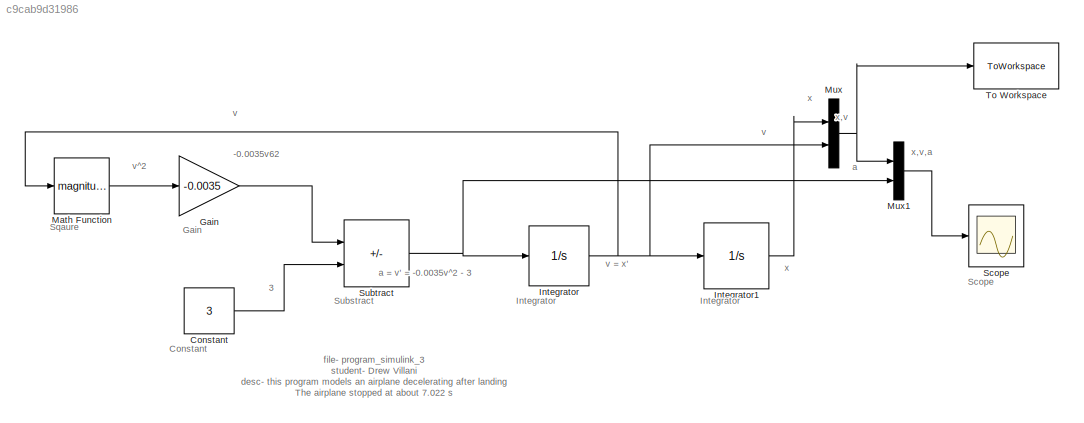
MODEL slx_c9cab9d31986
KIND model
CONFIG AbsTol = auto
CONFIG EnableMultiTasking = off
CONFIG FixedStep = auto
CONFIG MaxStep = auto
CONFIG MinStep = auto
CONFIG RelTol = 1e-3
CONFIG SampleTimeConstraint = Unconstrained
CONFIG SolverName = VariableStepAuto
CONFIG StartTime = 0.0
CONFIG StopTime = 13
BLOCK [Constant] Constant
  Value = 3
BLOCK [Gain] Gain
  Gain = -0.0035
BLOCK [Integrator] Integrator
BLOCK [Integrator] Integrator1
  InitialCondition = 83.33
BLOCK [Math] Math Function
  Operator = magnitude^2
BLOCK [Mux] Mux
  DisplayOption = bar
  Inputs = 2
BLOCK [Mux] Mux1
  DisplayOption = bar
  Inputs = 2
BLOCK [Scope] Scope
  Floating = off
  NumInputPorts = 1
  ScopeSpecificationString = Simulink.scopes.TimeScopeBlockCfg('CurrentConfiguration', extmgr.ConfigurationSet(extmgr.Configuration('Core','General UI',true),extmgr.Configuration('Core','Source UI',true),extmgr.Configuration('Sources','WiredSimulink',true),extmgr.Configuration('Visuals','Time Domain',true,'SerializedDisplays',{struct('MinYLimReal','-380.19958','MaxYLimReal','134.83329','YLabelReal','','MinYLimMag',' 0.00000',...<+1491ch>
BLOCK [Sum] Subtract
  IconShape = rectangular
  Inputs = +-
BLOCK [ToWorkspace] To Workspace
  MaxDataPoints = inf
  SampleTime = -1
  SaveFormat = Timeseries
  VariableName = simout
ANNOTATION (root): -0.0035v62
ANNOTATION (root): 3
ANNOTATION (root): file- program_simulink_3 student- Drew Villani desc- this program models an airplane decelerating after landing The airplane stopped at about 7.022 s
ANNOTATION (root): Constant
ANNOTATION (root): Gain
ANNOTATION (root): Integrator
ANNOTATION (root): Scope
ANNOTATION (root): Sqaure
ANNOTATION (root): Substract
ANNOTATION (root): a
ANNOTATION (root): a = v' = -0.0035v^2 - 3
ANNOTATION (root): v
ANNOTATION (root): v = x'
ANNOTATION (root): v^2
ANNOTATION (root): x
ANNOTATION (root): x,v
ANNOTATION (root): x,v,a
LINE Constant:1 -> Subtract:2
LINE Gain:1 -> Subtract:1
LINE Integrator1:1 -> Mux:1
NET Integrator:1 -> Integrator1:1, Math Function:1, Mux:2
LINE Math Function:1 -> Gain:1
LINE Mux1:1 -> Scope:1
NET Mux:1 -> Mux1:1, To Workspace:1
NET Subtract:1 -> Integrator:1, Mux1:2
note: NET lines group one-source signal fan-out (src -> all destinations, sorted); 1:1 wires keep LINE
